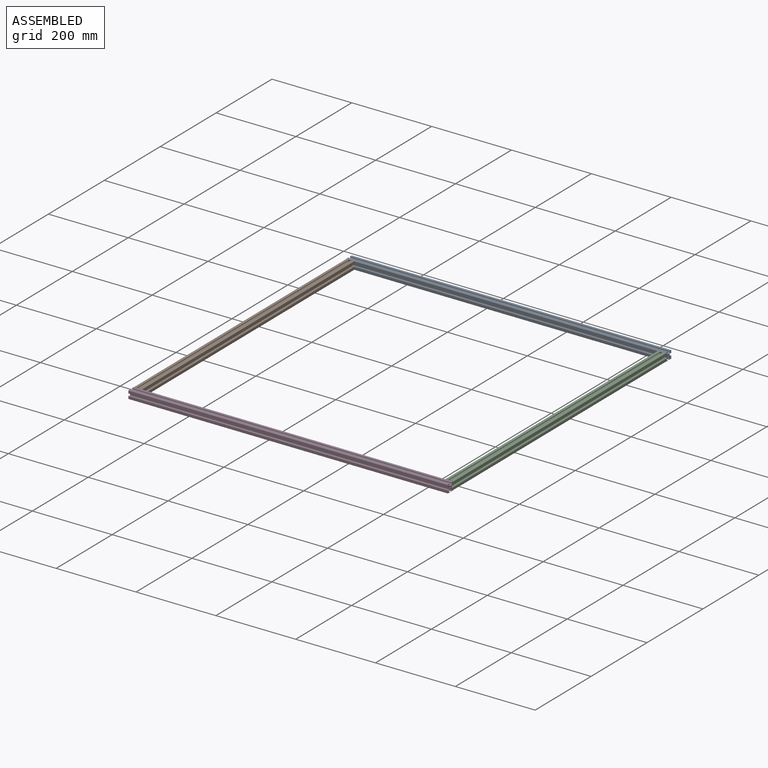
[diagram: assembled view]
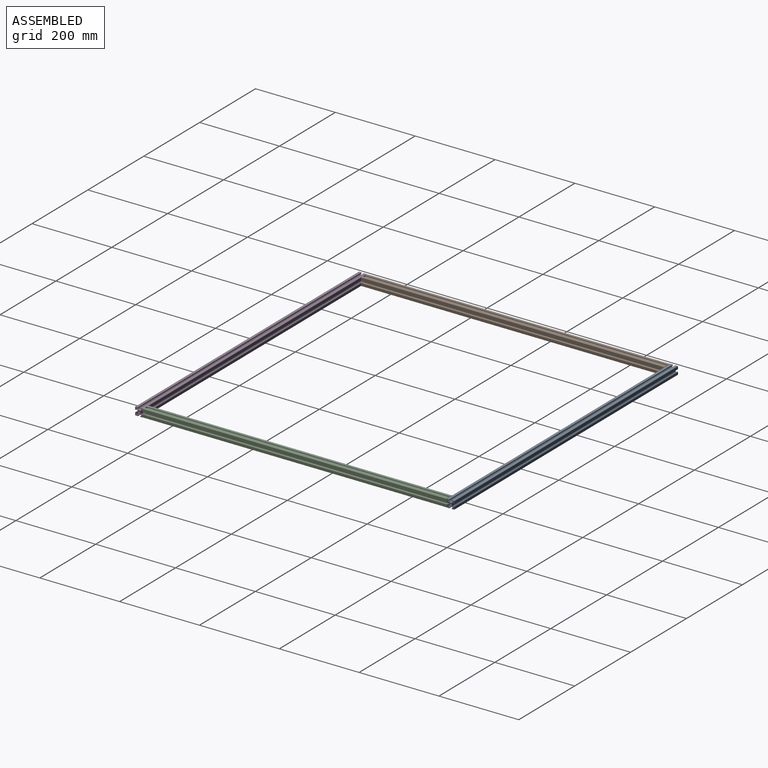
[diagram: assembled view, second angle]
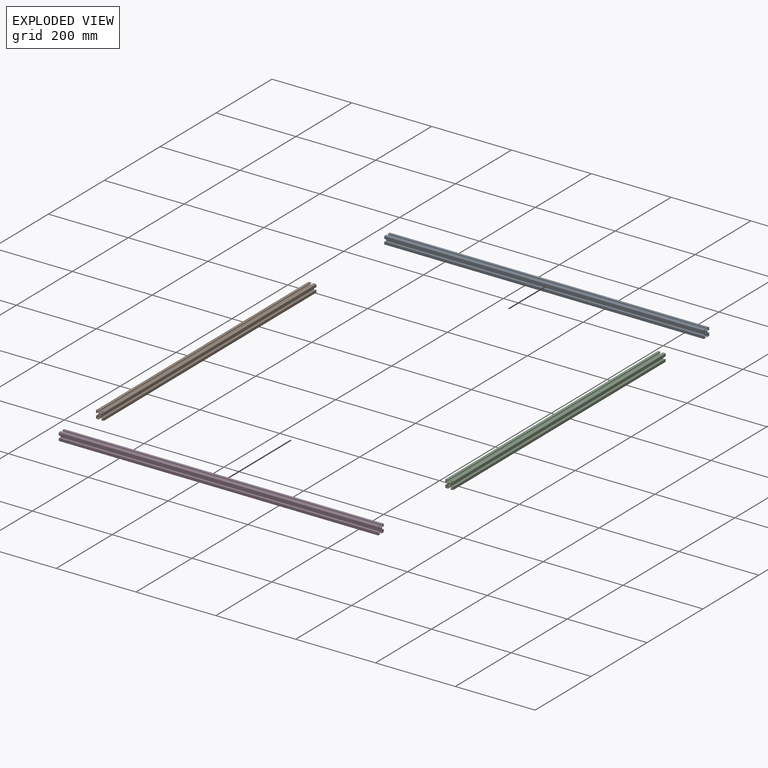
[diagram: exploded view]
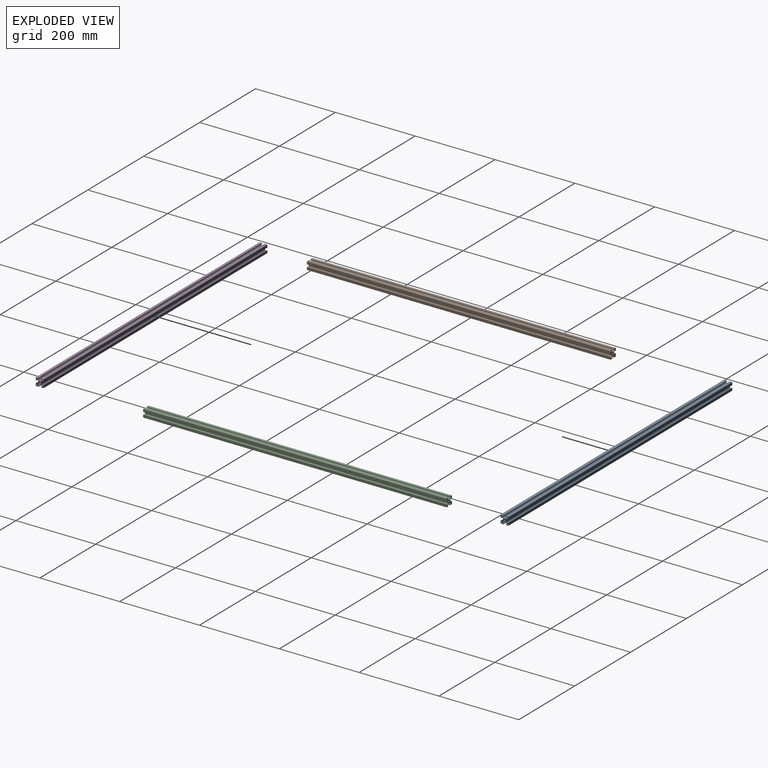
[diagram: exploded view, second angle]
ASSEMBLY  parts=4 mates=3
PART A: 67 faces, bbox 20x800x20 mm
  f0: plane 800x2mm, normal (1,0,0), area 1600mm2, adj f1,f64,f65,f66
  f1: plane 800x2mm, normal (0,0,-1), area 1600mm2, adj f0,f2,f65,f66
  f2: plane 800x2mm, normal (-1,0,0), area 1600mm2, adj f1,f64,f65,f66
  f3: cylinder r=1mm len=800mm, axis (0,1,0), area 1256.6mm2, adj f4,f60,f65,f66
  f4: plane 800x6mm, normal (0,0,-1), area 4800mm2, adj f3,f5,f65,f66
  f5: plane 800x2mm, normal (1,0,0), area 1600mm2, adj f4,f6,f65,f66
  f6: plane 800x3mm, normal (0,0,1), area 2400mm2, adj f5,f7,f65,f66
  f7: plane 800x1mm, normal (1,0,0), area 800mm2, adj f6,f8,f65,f66
  f8: plane 800x3mm, normal (0.71,0,-0.71), area 3394.1mm2, adj f7,f9,f65,f66
  f9: plane 800x6mm, normal (0,0,-1), area 4800mm2, adj f8,f10,f65,f66
  f10: plane 800x3mm, normal (-0.71,0,-0.71), area 3394.1mm2, adj f9,f11,f65,f66
  f11: plane 800x1mm, normal (-1,0,0), area 800mm2, adj f10,f12,f65,f66
  f12: plane 800x3mm, normal (0,0,1), area 2400mm2, adj f11,f13,f65,f66
  f13: plane 800x2mm, normal (-1,0,0), area 1600mm2, adj f12,f14,f65,f66
  f14: plane 800x6mm, normal (0,0,-1), area 4800mm2, adj f13,f15,f65,f66
  f15: cylinder r=1mm len=800mm, axis (0,1,0), area 1256.6mm2, adj f14,f16,f65,f66
  f16: plane 800x6mm, normal (1,0,0), area 4800mm2, adj f15,f17,f65,f66
  f17: plane 800x2mm, normal (0,0,1), area 1600mm2, adj f16,f18,f65,f66
  f18: plane 800x3mm, normal (-1,0,0), area 2400mm2, adj f17,f19,f65,f66
  f19: plane 800x1mm, normal (0,0,1), area 800mm2, adj f18,f20,f65,f66
  f20: plane 800x3mm, normal (0.71,0,0.71), area 3394.1mm2, adj f19,f21,f65,f66
  f21: plane 800x6mm, normal (1,0,0), area 4800mm2, adj f20,f22,f65,f66
  f22: plane 800x3mm, normal (0.71,0,-0.71), area 3394.1mm2, adj f21,f23,f65,f66
  f23: plane 800x1mm, normal (0,0,-1), area 800mm2, adj f22,f24,f65,f66
  f24: plane 800x3mm, normal (-1,0,0), area 2400mm2, adj f23,f25,f65,f66
  f25: plane 800x2mm, normal (0,0,-1), area 1600mm2, adj f24,f26,f65,f66
  f26: plane 800x6mm, normal (1,0,0), area 4800mm2, adj f25,f27,f65,f66
  f27: cylinder r=1mm len=800mm, axis (0,1,0), area 1256.6mm2, adj f26,f28,f65,f66
  f28: plane 800x6mm, normal (0,0,1), area 4800mm2, adj f27,f29,f65,f66
  f29: plane 800x2mm, normal (-1,0,0), area 1600mm2, adj f28,f30,f65,f66
  f30: plane 800x3mm, normal (0,0,-1), area 2400mm2, adj f29,f31,f65,f66
  f31: plane 800x1mm, normal (-1,0,0), area 800mm2, adj f30,f32,f65,f66
  f32: plane 800x3mm, normal (-0.71,0,0.71), area 3394.1mm2, adj f31,f33,f65,f66
  f33: plane 800x6mm, normal (0,0,1), area 4800mm2, adj f32,f34,f65,f66
  f34: plane 800x3mm, normal (0.71,0,0.71), area 3394.1mm2, adj f33,f35,f65,f66
  f35: plane 800x1mm, normal (1,0,0), area 800mm2, adj f34,f36,f65,f66
  f36: plane 800x3mm, normal (0,0,-1), area 2400mm2, adj f35,f37,f65,f66
  f37: plane 800x2mm, normal (1,0,0), area 1600mm2, adj f36,f38,f65,f66
  f38: plane 800x6mm, normal (0,0,1), area 4800mm2, adj f37,f39,f65,f66
  f39: cylinder r=1mm len=800mm, axis (0,1,0), area 1256.6mm2, adj f38,f40,f65,f66
  f40: plane 800x6mm, normal (-1,0,0), area 4800mm2, adj f39,f41,f65,f66
  f41: plane 800x2mm, normal (0,0,-1), area 1600mm2, adj f40,f42,f65,f66
  f42: plane 800x3mm, normal (1,0,0), area 2400mm2, adj f41,f43,f65,f66
  f43: plane 800x1mm, normal (0,0,-1), area 800mm2, adj f42,f44,f65,f66
  f44: plane 800x3mm, normal (-0.71,0,-0.71), area 3394.1mm2, adj f43,f45,f65,f66
  f45: plane 800x6mm, normal (-1,0,0), area 4800mm2, adj f44,f46,f65,f66
  f46: plane 800x3mm, normal (-0.71,0,0.71), area 3394.1mm2, adj f45,f47,f65,f66
  f47: plane 800x1mm, normal (0,0,1), area 800mm2, adj f46,f48,f65,f66
  f48: plane 800x3mm, normal (1,0,0), area 2400mm2, adj f47,f49,f65,f66
  f49: plane 800x2mm, normal (0,0,1), area 1600mm2, adj f48,f60,f65,f66
  f50: plane 800x2mm, normal (1,0,0), area 1600mm2, adj f51,f61,f65,f66
  f51: plane 800x2mm, normal (0,0,-1), area 1600mm2, adj f50,f52,f65,f66
  f52: plane 800x2mm, normal (-1,0,0), area 1600mm2, adj f51,f61,f65,f66
  f53: plane 800x2mm, normal (0,0,-1), area 1600mm2, adj f54,f62,f65,f66
  f54: plane 800x2mm, normal (-1,0,0), area 1600mm2, adj f53,f55,f65,f66
  f55: plane 800x2mm, normal (0,0,1), area 1600mm2, adj f54,f62,f65,f66
  f56: plane 800x2mm, normal (-1,0,0), area 1600mm2, adj f57,f63,f65,f66
  f57: plane 800x2mm, normal (0,0,1), area 1600mm2, adj f56,f58,f65,f66
  f58: plane 800x2mm, normal (1,0,0), area 1600mm2, adj f57,f63,f65,f66
  f59: cylinder r=2.1mm len=800mm, axis (0,1,0), area 10555.8mm2, adj f65,f66
  f60: plane 800x6mm, normal (-1,0,0), area 4800mm2, adj f3,f49,f65,f66
  f61: plane 800x2mm, normal (0,0,1), area 1600mm2, adj f50,f52,f65,f66
  f62: plane 800x2mm, normal (1,0,0), area 1600mm2, adj f53,f55,f65,f66
  f63: plane 800x2mm, normal (0,0,-1), area 1600mm2, adj f56,f58,f65,f66
  f64: plane 800x2mm, normal (0,0,1), area 1600mm2, adj f0,f2,f65,f66
  f65: plane 20x20mm, normal (0,-1,0), area 165.3mm2, adj f0,f1,f2,f3,f4,f5,f6,f7
  f66: plane 20x20mm, normal (0,1,0), area 165.3mm2, adj f0,f1,f2,f3,f4,f5,f6,f7
PART B: 67 faces, bbox 20x760x20 mm
  f0: plane 760x2mm, normal (1,0,0), area 1520mm2, adj f1,f64,f65,f66
  f1: plane 760x2mm, normal (0,0,-1), area 1520mm2, adj f0,f2,f65,f66
  f2: plane 760x2mm, normal (-1,0,0), area 1520mm2, adj f1,f64,f65,f66
  f3: cylinder r=1mm len=760mm, axis (0,1,0), area 1193.8mm2, adj f4,f60,f65,f66
  f4: plane 760x6mm, normal (0,0,-1), area 4560mm2, adj f3,f5,f65,f66
  f5: plane 760x2mm, normal (1,0,0), area 1520mm2, adj f4,f6,f65,f66
  f6: plane 760x3mm, normal (0,0,1), area 2280mm2, adj f5,f7,f65,f66
  f7: plane 760x1mm, normal (1,0,0), area 760mm2, adj f6,f8,f65,f66
  f8: plane 760x3mm, normal (0.71,0,-0.71), area 3224.4mm2, adj f7,f9,f65,f66
  f9: plane 760x6mm, normal (0,0,-1), area 4560mm2, adj f8,f10,f65,f66
  f10: plane 760x3mm, normal (-0.71,0,-0.71), area 3224.4mm2, adj f9,f11,f65,f66
  f11: plane 760x1mm, normal (-1,0,0), area 760mm2, adj f10,f12,f65,f66
  f12: plane 760x3mm, normal (0,0,1), area 2280mm2, adj f11,f13,f65,f66
  f13: plane 760x2mm, normal (-1,0,0), area 1520mm2, adj f12,f14,f65,f66
  f14: plane 760x6mm, normal (0,0,-1), area 4560mm2, adj f13,f15,f65,f66
  f15: cylinder r=1mm len=760mm, axis (0,1,0), area 1193.8mm2, adj f14,f16,f65,f66
  f16: plane 760x6mm, normal (1,0,0), area 4560mm2, adj f15,f17,f65,f66
  f17: plane 760x2mm, normal (0,0,1), area 1520mm2, adj f16,f18,f65,f66
  f18: plane 760x3mm, normal (-1,0,0), area 2280mm2, adj f17,f19,f65,f66
  f19: plane 760x1mm, normal (0,0,1), area 760mm2, adj f18,f20,f65,f66
  f20: plane 760x3mm, normal (0.71,0,0.71), area 3224.4mm2, adj f19,f21,f65,f66
  f21: plane 760x6mm, normal (1,0,0), area 4560mm2, adj f20,f22,f65,f66
  f22: plane 760x3mm, normal (0.71,0,-0.71), area 3224.4mm2, adj f21,f23,f65,f66
  f23: plane 760x1mm, normal (0,0,-1), area 760mm2, adj f22,f24,f65,f66
  f24: plane 760x3mm, normal (-1,0,0), area 2280mm2, adj f23,f25,f65,f66
  f25: plane 760x2mm, normal (0,0,-1), area 1520mm2, adj f24,f26,f65,f66
  f26: plane 760x6mm, normal (1,0,0), area 4560mm2, adj f25,f27,f65,f66
  f27: cylinder r=1mm len=760mm, axis (0,1,0), area 1193.8mm2, adj f26,f28,f65,f66
  f28: plane 760x6mm, normal (0,0,1), area 4560mm2, adj f27,f29,f65,f66
  f29: plane 760x2mm, normal (-1,0,0), area 1520mm2, adj f28,f30,f65,f66
  f30: plane 760x3mm, normal (0,0,-1), area 2280mm2, adj f29,f31,f65,f66
  f31: plane 760x1mm, normal (-1,0,0), area 760mm2, adj f30,f32,f65,f66
  f32: plane 760x3mm, normal (-0.71,0,0.71), area 3224.4mm2, adj f31,f33,f65,f66
  f33: plane 760x6mm, normal (0,0,1), area 4560mm2, adj f32,f34,f65,f66
  f34: plane 760x3mm, normal (0.71,0,0.71), area 3224.4mm2, adj f33,f35,f65,f66
  f35: plane 760x1mm, normal (1,0,0), area 760mm2, adj f34,f36,f65,f66
  f36: plane 760x3mm, normal (0,0,-1), area 2280mm2, adj f35,f37,f65,f66
  f37: plane 760x2mm, normal (1,0,0), area 1520mm2, adj f36,f38,f65,f66
  f38: plane 760x6mm, normal (0,0,1), area 4560mm2, adj f37,f39,f65,f66
  f39: cylinder r=1mm len=760mm, axis (0,1,0), area 1193.8mm2, adj f38,f40,f65,f66
  f40: plane 760x6mm, normal (-1,0,0), area 4560mm2, adj f39,f41,f65,f66
  f41: plane 760x2mm, normal (0,0,-1), area 1520mm2, adj f40,f42,f65,f66
  f42: plane 760x3mm, normal (1,0,0), area 2280mm2, adj f41,f43,f65,f66
  f43: plane 760x1mm, normal (0,0,-1), area 760mm2, adj f42,f44,f65,f66
  f44: plane 760x3mm, normal (-0.71,0,-0.71), area 3224.4mm2, adj f43,f45,f65,f66
  f45: plane 760x6mm, normal (-1,0,0), area 4560mm2, adj f44,f46,f65,f66
  f46: plane 760x3mm, normal (-0.71,0,0.71), area 3224.4mm2, adj f45,f47,f65,f66
  f47: plane 760x1mm, normal (0,0,1), area 760mm2, adj f46,f48,f65,f66
  f48: plane 760x3mm, normal (1,0,0), area 2280mm2, adj f47,f49,f65,f66
  f49: plane 760x2mm, normal (0,0,1), area 1520mm2, adj f48,f60,f65,f66
  f50: plane 760x2mm, normal (1,0,0), area 1520mm2, adj f51,f61,f65,f66
  f51: plane 760x2mm, normal (0,0,-1), area 1520mm2, adj f50,f52,f65,f66
  f52: plane 760x2mm, normal (-1,0,0), area 1520mm2, adj f51,f61,f65,f66
  f53: plane 760x2mm, normal (0,0,-1), area 1520mm2, adj f54,f62,f65,f66
  f54: plane 760x2mm, normal (-1,0,0), area 1520mm2, adj f53,f55,f65,f66
  f55: plane 760x2mm, normal (0,0,1), area 1520mm2, adj f54,f62,f65,f66
  f56: plane 760x2mm, normal (-1,0,0), area 1520mm2, adj f57,f63,f65,f66
  f57: plane 760x2mm, normal (0,0,1), area 1520mm2, adj f56,f58,f65,f66
  f58: plane 760x2mm, normal (1,0,0), area 1520mm2, adj f57,f63,f65,f66
  f59: cylinder r=2.1mm len=760mm, axis (0,1,0), area 10028mm2, adj f65,f66
  f60: plane 760x6mm, normal (-1,0,0), area 4560mm2, adj f3,f49,f65,f66
  f61: plane 760x2mm, normal (0,0,1), area 1520mm2, adj f50,f52,f65,f66
  f62: plane 760x2mm, normal (1,0,0), area 1520mm2, adj f53,f55,f65,f66
  f63: plane 760x2mm, normal (0,0,-1), area 1520mm2, adj f56,f58,f65,f66
  f64: plane 760x2mm, normal (0,0,1), area 1520mm2, adj f0,f2,f65,f66
  f65: plane 20x20mm, normal (0,-1,0), area 165.3mm2, adj f0,f1,f2,f3,f4,f5,f6,f7
  f66: plane 20x20mm, normal (0,1,0), area 165.3mm2, adj f0,f1,f2,f3,f4,f5,f6,f7
PART C: same geometry as B
PART D: same geometry as A
PLACE A rot(axis=(0,0,-1),90deg) t=(70.81,718.3,-168.96)mm
PLACE B rot(axis=(0,0.06,-1),0deg) t=(-719.19,708.3,-168.96)mm
PLACE C rot(axis=(0,0.01,-1),0deg) t=(60.81,708.3,-168.96)mm
PLACE D rot(axis=(0,0,-1),90deg) t=(70.81,-61.7,-168.96)mm
MATE fastened B.f59 <-> D.f40  axis (0,-1,0) through (-719.19,-51.7,-168.96)mm
MATE fastened C.f59 <-> A.f26  axis (0,1,0) through (60.81,708.3,-168.96)mm
MATE fastened B.f59 <-> A.f26  axis (0,1,0) through (-719.19,708.3,-168.96)mm
